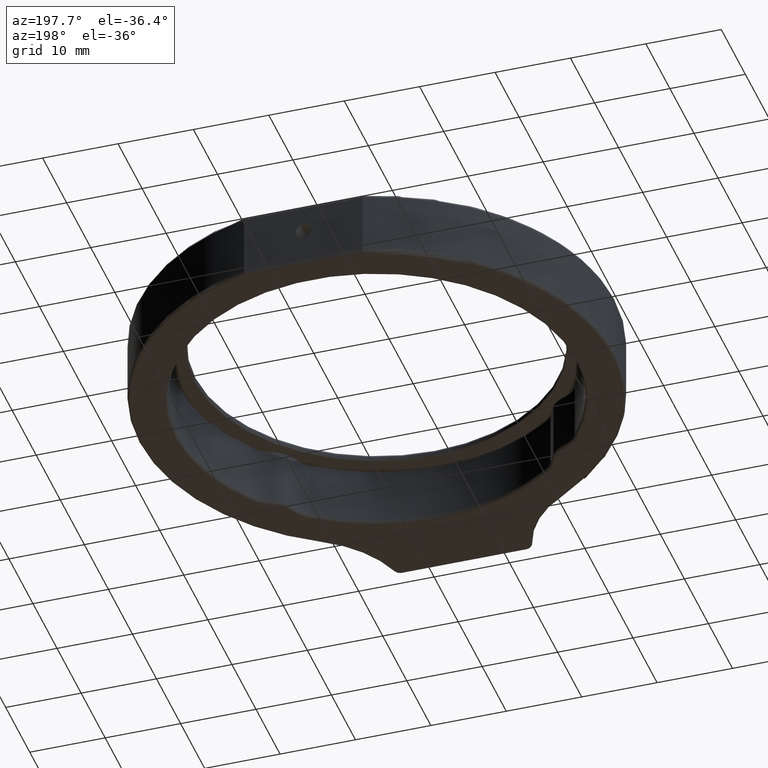
[diagram: clean part render]
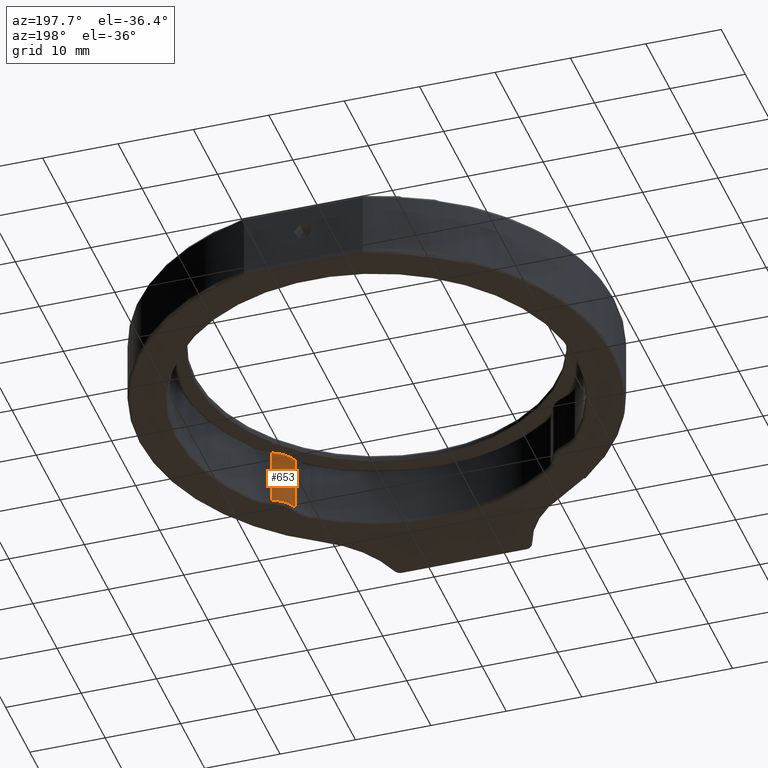
[diagram: same view with one face highlighted and labeled with its STEP entity id]
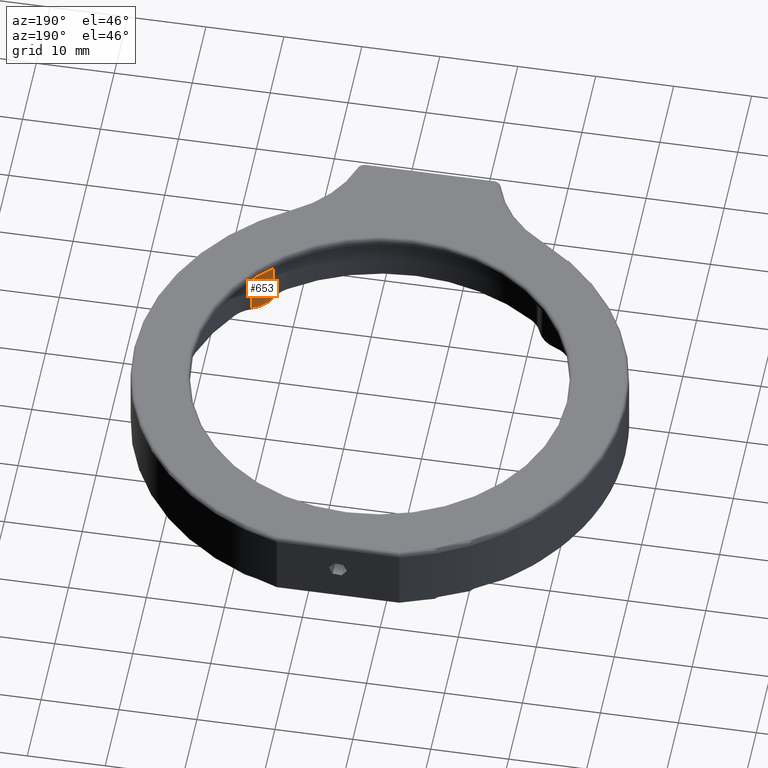
[diagram: same view with one face highlighted and labeled with its STEP entity id]
A machine part, auxiliary view. The second image highlights one B-rep face of the part: STEP entity #653.
A second angle (auxiliary view) of the same face is appended — the face is thin or edge-on in the first view.
In plain terms, the highlighted cylindrical surface (edge-blend (fillet) strip) has radius 4 mm, axis along (0, 0, -1).
Its self-contained STEP definition (entity closure, byte-faithful):
#4 = CIRCLE ( 'NONE', #583, 4.000000000000003600 ) ;
#52 = EDGE_CURVE ( 'NONE', #738, #1741, #4, .T. ) ;
#98 = CARTESIAN_POINT ( 'NONE',  ( 36.75286169664427400, -14.33008952876980600, 8.000000000007276000 ) ) ;
#152 = CYLINDRICAL_SURFACE ( 'NONE', #406, 4.000000000000003600 ) ;
#187 = EDGE_CURVE ( 'NONE', #1201, #1513, #2328, .T. ) ;
#311 = DIRECTION ( 'NONE',  ( 1.000000000000000000, 8.673617379884027600E-016, 0.0000000000000000000 ) ) ;
#328 = CARTESIAN_POINT ( 'NONE',  ( 32.99597498030379200, -12.95684439384870100, 7.900000000007276300 ) ) ;
#357 = EDGE_LOOP ( 'NONE', ( #1820, #1313, #1505, #531 ) ) ;
#406 = AXIS2_PLACEMENT_3D ( 'NONE', #98, #1162, #774 ) ;
#531 = ORIENTED_EDGE ( 'NONE', *, *, #187, .T. ) ;
#583 = AXIS2_PLACEMENT_3D ( 'NONE', #942, #2430, #311 ) ;
#653 = ADVANCED_FACE ( 'NONE', ( #894 ), #152, .T. ) ;
#689 = LINE ( 'NONE', #1358, #1686 ) ;
#729 = AXIS2_PLACEMENT_3D ( 'NONE', #803, #1020, #2507 ) ;
#738 = VERTEX_POINT ( 'NONE', #328 ) ;
#774 = DIRECTION ( 'NONE',  ( -1.000000000000000000, 0.0000000000000000000, 0.0000000000000000000 ) ) ;
#803 = CARTESIAN_POINT ( 'NONE',  ( 36.75286169664427400, -14.33008952876980600, 0.5000000000072767300 ) ) ;
#807 = DIRECTION ( 'NONE',  ( 0.0000000000000000000, 0.0000000000000000000, -1.000000000000000000 ) ) ;
#894 = FACE_OUTER_BOUND ( 'NONE', #357, .T. ) ;
#942 = CARTESIAN_POINT ( 'NONE',  ( 36.75286169664427400, -14.33008952876980600, 7.900000000007276300 ) ) ;
#1020 = DIRECTION ( 'NONE',  ( -0.0000000000000000000, 0.0000000000000000000, 1.000000000000000000 ) ) ;
#1162 = DIRECTION ( 'NONE',  ( 0.0000000000000000000, 0.0000000000000000000, -1.000000000000000000 ) ) ;
#1201 = VERTEX_POINT ( 'NONE', #2287 ) ;
#1313 = ORIENTED_EDGE ( 'NONE', *, *, #52, .T. ) ;
#1358 = CARTESIAN_POINT ( 'NONE',  ( 35.37961656172314700, -10.57320281242933300, 8.000000000007276000 ) ) ;
#1505 = ORIENTED_EDGE ( 'NONE', *, *, #2146, .T. ) ;
#1513 = VERTEX_POINT ( 'NONE', #1981 ) ;
#1522 = LINE ( 'NONE', #2523, #2596 ) ;
#1593 = DIRECTION ( 'NONE',  ( 0.0000000000000000000, 0.0000000000000000000, -1.000000000000000000 ) ) ;
#1686 = VECTOR ( 'NONE', #1593, 1000.000000000000000 ) ;
#1741 = VERTEX_POINT ( 'NONE', #2282 ) ;
#1769 = EDGE_CURVE ( 'NONE', #738, #1513, #1522, .T. ) ;
#1820 = ORIENTED_EDGE ( 'NONE', *, *, #1769, .F. ) ;
#1981 = CARTESIAN_POINT ( 'NONE',  ( 32.99597498030379200, -12.95684439384870100, 0.5000000000072767300 ) ) ;
#2146 = EDGE_CURVE ( 'NONE', #1741, #1201, #689, .T. ) ;
#2282 = CARTESIAN_POINT ( 'NONE',  ( 35.37961656172314700, -10.57320281242933300, 7.900000000007276300 ) ) ;
#2287 = CARTESIAN_POINT ( 'NONE',  ( 35.37961656172314700, -10.57320281242933300, 0.5000000000072767300 ) ) ;
#2328 = CIRCLE ( 'NONE', #729, 4.000000000000003600 ) ;
#2430 = DIRECTION ( 'NONE',  ( 0.0000000000000000000, -0.0000000000000000000, -1.000000000000000000 ) ) ;
#2507 = DIRECTION ( 'NONE',  ( 1.000000000000000000, 0.0000000000000000000, 0.0000000000000000000 ) ) ;
#2523 = CARTESIAN_POINT ( 'NONE',  ( 32.99597498030379200, -12.95684439384870100, 8.000000000007276000 ) ) ;
#2596 = VECTOR ( 'NONE', #807, 1000.000000000000000 ) ;